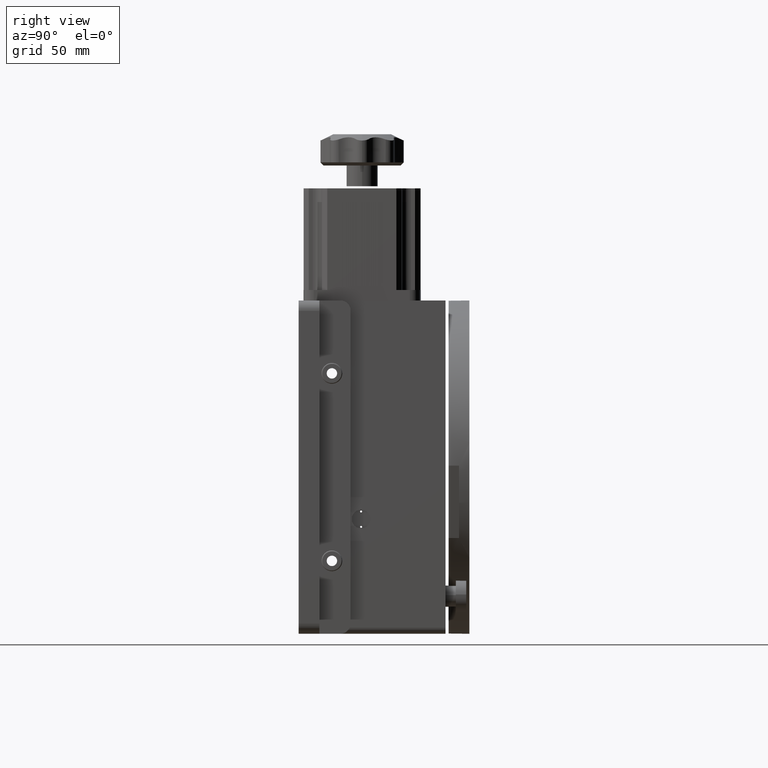
[diagram: clean part render]
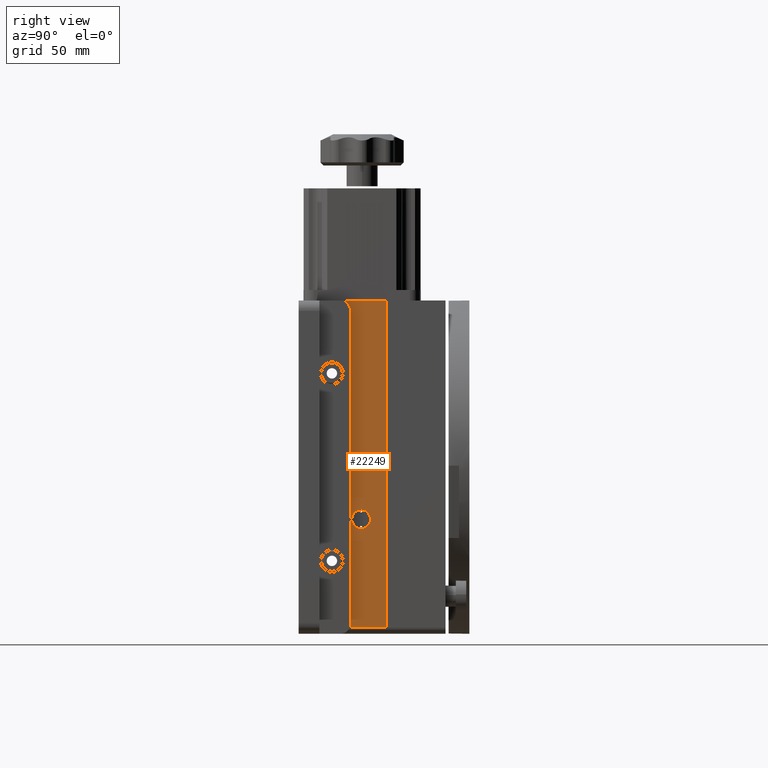
[diagram: same view with one face highlighted and labeled with its STEP entity id]
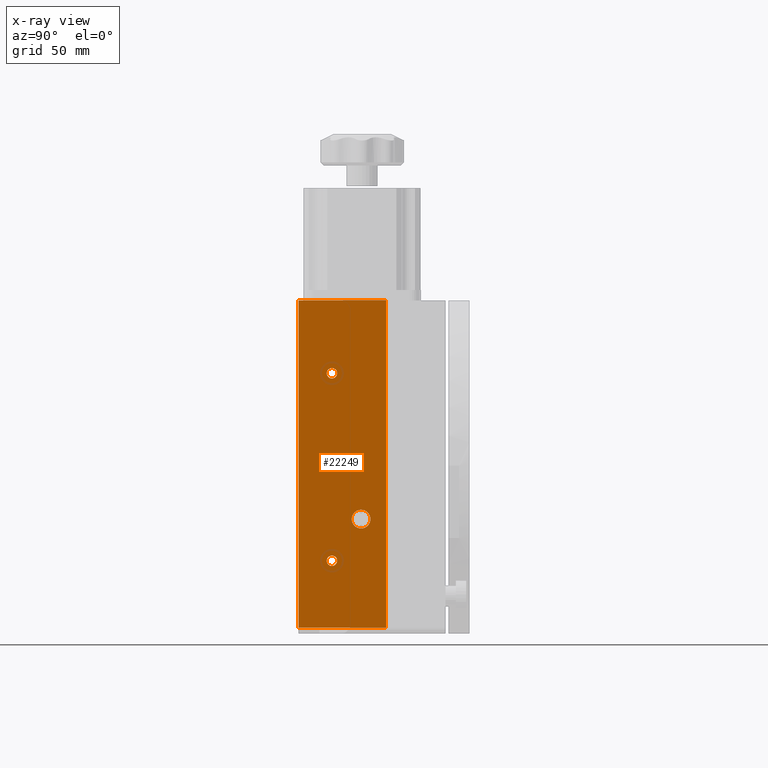
[diagram: x-ray of the same camera — body ghosted, the highlighted face saturated]
A machine part, right view. The second image highlights one B-rep face of the part: STEP entity #22249.
The next image is the same camera in x-ray: the body ghosted, the highlighted face saturated — about 0% of this face is hidden behind the body in this view.
In plain terms, the highlighted planar face has unit normal (-1, 0, 0).
Its self-contained STEP definition (entity closure, byte-faithful):
#386 = AXIS2_PLACEMENT_3D ( 'NONE', #61582, #11564, #69986 ) ;
#1115 = CARTESIAN_POINT ( 'NONE',  ( 280.5000000000001700, 8.499999999999996400, 45.00000000000005700 ) ) ;
#1254 = DIRECTION ( 'NONE',  ( 0.0000000000000000000, 0.0000000000000000000, 1.000000000000000000 ) ) ;
#2154 = ORIENTED_EDGE ( 'NONE', *, *, #63591, .F. ) ;
#5076 = FACE_BOUND ( 'NONE', #7644, .T. ) ;
#5307 = EDGE_CURVE ( 'NONE', #45336, #36238, #22538, .T. ) ;
#5318 = ORIENTED_EDGE ( 'NONE', *, *, #96052, .F. ) ;
#5406 = DIRECTION ( 'NONE',  ( 0.0000000000000000000, 0.0000000000000000000, 1.000000000000000000 ) ) ;
#5718 = ORIENTED_EDGE ( 'NONE', *, *, #23517, .F. ) ;
#5852 = EDGE_CURVE ( 'NONE', #107962, #52404, #88941, .T. ) ;
#6702 = PLANE ( 'NONE',  #80579 ) ;
#6727 = CARTESIAN_POINT ( 'NONE',  ( 280.5000000000001700, 8.500000000000007100, -47.50000000000008500 ) ) ;
#7172 = DIRECTION ( 'NONE',  ( 1.782934639968033400E-017, 1.000000000000000000, 1.930919798284919600E-017 ) ) ;
#7644 = EDGE_LOOP ( 'NONE', ( #55526, #68880 ) ) ;
#9519 = DIRECTION ( 'NONE',  ( 0.0000000000000000000, 0.0000000000000000000, 1.000000000000000000 ) ) ;
#11564 = DIRECTION ( 'NONE',  ( 1.000000000000000000, -1.782934639968052600E-017, -5.551115123125781500E-017 ) ) ;
#14692 = CARTESIAN_POINT ( 'NONE',  ( 280.5000000000001700, 22.49999999999996400, -20.50000000000007100 ) ) ;
#16875 = AXIS2_PLACEMENT_3D ( 'NONE', #1115, #59543, #9519 ) ;
#19647 = DIRECTION ( 'NONE',  ( 1.000000000000000000, -1.782934639968052600E-017, -5.551115123125781500E-017 ) ) ;
#22249 = ADVANCED_FACE ( 'NONE', ( #71777, #93963, #5076, #27313 ), #6702, .F. ) ;
#22538 = CIRCLE ( 'NONE', #97072, 4.500000000000007100 ) ;
#23351 = CIRCLE ( 'NONE', #46286, 2.500000000000002200 ) ;
#23517 = EDGE_CURVE ( 'NONE', #45536, #72244, #36052, .T. ) ;
#24927 = CIRCLE ( 'NONE', #386, 2.500000000000002200 ) ;
#25870 = CIRCLE ( 'NONE', #93951, 4.500000000000007100 ) ;
#27313 = FACE_OUTER_BOUND ( 'NONE', #87474, .T. ) ;
#28347 = ORIENTED_EDGE ( 'NONE', *, *, #82615, .F. ) ;
#28507 = VECTOR ( 'NONE', #97700, 1000.000000000000000 ) ;
#30023 = DIRECTION ( 'NONE',  ( -5.551115123125781500E-017, 1.930919798284916200E-017, -1.000000000000000000 ) ) ;
#30393 = CARTESIAN_POINT ( 'NONE',  ( 280.5000000000001700, 8.499999999999996400, 47.50000000000005700 ) ) ;
#32274 = DIRECTION ( 'NONE',  ( -1.000000000000000000, 1.782934639968052900E-017, 5.551115123125781500E-017 ) ) ;
#36052 = CIRCLE ( 'NONE', #106583, 2.500000000000002200 ) ;
#36238 = VERTEX_POINT ( 'NONE', #14692 ) ;
#38696 = DIRECTION ( 'NONE',  ( -5.551115123125781500E-017, 1.930919798284916200E-017, -1.000000000000000000 ) ) ;
#39389 = VECTOR ( 'NONE', #7172, 1000.000000000000000 ) ;
#42013 = LINE ( 'NONE', #107232, #39389 ) ;
#42999 = CARTESIAN_POINT ( 'NONE',  ( 280.5000000000001700, -7.499999999999976900, 80.00000000000011400 ) ) ;
#44551 = EDGE_CURVE ( 'NONE', #76873, #100288, #95636, .T. ) ;
#45336 = VERTEX_POINT ( 'NONE', #51709 ) ;
#45536 = VERTEX_POINT ( 'NONE', #62987 ) ;
#46286 = AXIS2_PLACEMENT_3D ( 'NONE', #101300, #51287, #1254 ) ;
#49750 = ORIENTED_EDGE ( 'NONE', *, *, #102871, .T. ) ;
#51287 = DIRECTION ( 'NONE',  ( 1.000000000000000000, -1.782934639968052600E-017, -5.551115123125781500E-017 ) ) ;
#51709 = CARTESIAN_POINT ( 'NONE',  ( 280.5000000000001700, 22.49999999999996400, -29.50000000000007800 ) ) ;
#51833 = VERTEX_POINT ( 'NONE', #104721 ) ;
#52404 = VERTEX_POINT ( 'NONE', #106754 ) ;
#55476 = DIRECTION ( 'NONE',  ( 1.000000000000000000, -1.782934639968052600E-017, -5.551115123125781500E-017 ) ) ;
#55526 = ORIENTED_EDGE ( 'NONE', *, *, #93021, .F. ) ;
#55836 = EDGE_LOOP ( 'NONE', ( #5318, #2154 ) ) ;
#59543 = DIRECTION ( 'NONE',  ( 1.000000000000000000, -1.782934639968052600E-017, -5.551115123125781500E-017 ) ) ;
#60850 = ORIENTED_EDGE ( 'NONE', *, *, #82461, .F. ) ;
#61582 = CARTESIAN_POINT ( 'NONE',  ( 280.5000000000001700, 8.499999999999996400, 45.00000000000005700 ) ) ;
#62987 = CARTESIAN_POINT ( 'NONE',  ( 280.5000000000001700, 8.500000000000007100, -42.50000000000007800 ) ) ;
#63591 = EDGE_CURVE ( 'NONE', #51833, #80856, #66357, .T. ) ;
#63694 = ORIENTED_EDGE ( 'NONE', *, *, #5852, .T. ) ;
#66357 = CIRCLE ( 'NONE', #16875, 2.500000000000002200 ) ;
#66716 = VECTOR ( 'NONE', #38696, 1000.000000000000000 ) ;
#68880 = ORIENTED_EDGE ( 'NONE', *, *, #5307, .F. ) ;
#69656 = CARTESIAN_POINT ( 'NONE',  ( 280.5000000000001700, 8.500000000000007100, -45.00000000000007800 ) ) ;
#69986 = DIRECTION ( 'NONE',  ( 0.0000000000000000000, 0.0000000000000000000, 1.000000000000000000 ) ) ;
#71777 = FACE_BOUND ( 'NONE', #93231, .T. ) ;
#72244 = VERTEX_POINT ( 'NONE', #6727 ) ;
#73278 = CARTESIAN_POINT ( 'NONE',  ( 280.5000000000001700, -7.499999999999976900, 80.00000000000011400 ) ) ;
#73469 = VECTOR ( 'NONE', #30023, 1000.000000000000000 ) ;
#76873 = VERTEX_POINT ( 'NONE', #103098 ) ;
#78053 = DIRECTION ( 'NONE',  ( 0.0000000000000000000, 0.0000000000000000000, 1.000000000000000000 ) ) ;
#80579 = AXIS2_PLACEMENT_3D ( 'NONE', #82299, #32274, #90719 ) ;
#80856 = VERTEX_POINT ( 'NONE', #30393 ) ;
#82299 = CARTESIAN_POINT ( 'NONE',  ( 280.5000000000001700, -7.499999999999976900, 80.00000000000011400 ) ) ;
#82461 = EDGE_CURVE ( 'NONE', #107962, #76873, #95156, .T. ) ;
#82615 = EDGE_CURVE ( 'NONE', #72244, #45536, #23351, .T. ) ;
#83893 = DIRECTION ( 'NONE',  ( 0.0000000000000000000, 0.0000000000000000000, 1.000000000000000000 ) ) ;
#86794 = CARTESIAN_POINT ( 'NONE',  ( 280.5000000000001700, 34.49999999999999300, -77.00000000000014200 ) ) ;
#87060 = ORIENTED_EDGE ( 'NONE', *, *, #44551, .F. ) ;
#87474 = EDGE_LOOP ( 'NONE', ( #63694, #49750, #87060, #60850 ) ) ;
#88941 = LINE ( 'NONE', #42999, #66716 ) ;
#90719 = DIRECTION ( 'NONE',  ( -5.551115123125781500E-017, 1.930919798284916200E-017, -1.000000000000000000 ) ) ;
#92299 = CARTESIAN_POINT ( 'NONE',  ( 280.5000000000001700, 22.49999999999996400, -25.00000000000007800 ) ) ;
#93021 = EDGE_CURVE ( 'NONE', #36238, #45336, #25870, .T. ) ;
#93231 = EDGE_LOOP ( 'NONE', ( #5718, #28347 ) ) ;
#93951 = AXIS2_PLACEMENT_3D ( 'NONE', #105457, #55476, #5406 ) ;
#93963 = FACE_BOUND ( 'NONE', #55836, .T. ) ;
#93985 = DIRECTION ( 'NONE',  ( 1.000000000000000000, -1.782934639968052600E-017, -5.551115123125781500E-017 ) ) ;
#95156 = LINE ( 'NONE', #73278, #28507 ) ;
#95636 = LINE ( 'NONE', #105939, #73469 ) ;
#96052 = EDGE_CURVE ( 'NONE', #80856, #51833, #24927, .T. ) ;
#97072 = AXIS2_PLACEMENT_3D ( 'NONE', #92299, #93985, #83893 ) ;
#97700 = DIRECTION ( 'NONE',  ( 1.782934639968033400E-017, 1.000000000000000000, 1.930919798284919600E-017 ) ) ;
#100288 = VERTEX_POINT ( 'NONE', #86794 ) ;
#100470 = CARTESIAN_POINT ( 'NONE',  ( 280.5000000000001700, -7.499999999999976900, 80.00000000000011400 ) ) ;
#101300 = CARTESIAN_POINT ( 'NONE',  ( 280.5000000000001700, 8.500000000000007100, -45.00000000000007800 ) ) ;
#102871 = EDGE_CURVE ( 'NONE', #52404, #100288, #42013, .T. ) ;
#103098 = CARTESIAN_POINT ( 'NONE',  ( 280.5000000000001700, 34.49999999999999300, 80.00000000000011400 ) ) ;
#104721 = CARTESIAN_POINT ( 'NONE',  ( 280.5000000000001700, 8.499999999999996400, 42.50000000000005000 ) ) ;
#105457 = CARTESIAN_POINT ( 'NONE',  ( 280.5000000000001700, 22.49999999999996400, -25.00000000000007800 ) ) ;
#105939 = CARTESIAN_POINT ( 'NONE',  ( 280.5000000000001700, 34.49999999999999300, 80.00000000000011400 ) ) ;
#106583 = AXIS2_PLACEMENT_3D ( 'NONE', #69656, #19647, #78053 ) ;
#106754 = CARTESIAN_POINT ( 'NONE',  ( 280.5000000000001700, -7.499999999999991100, -77.00000000000014200 ) ) ;
#107232 = CARTESIAN_POINT ( 'NONE',  ( 280.5000000000001700, -7.499999999999991100, -77.00000000000014200 ) ) ;
#107962 = VERTEX_POINT ( 'NONE', #100470 ) ;